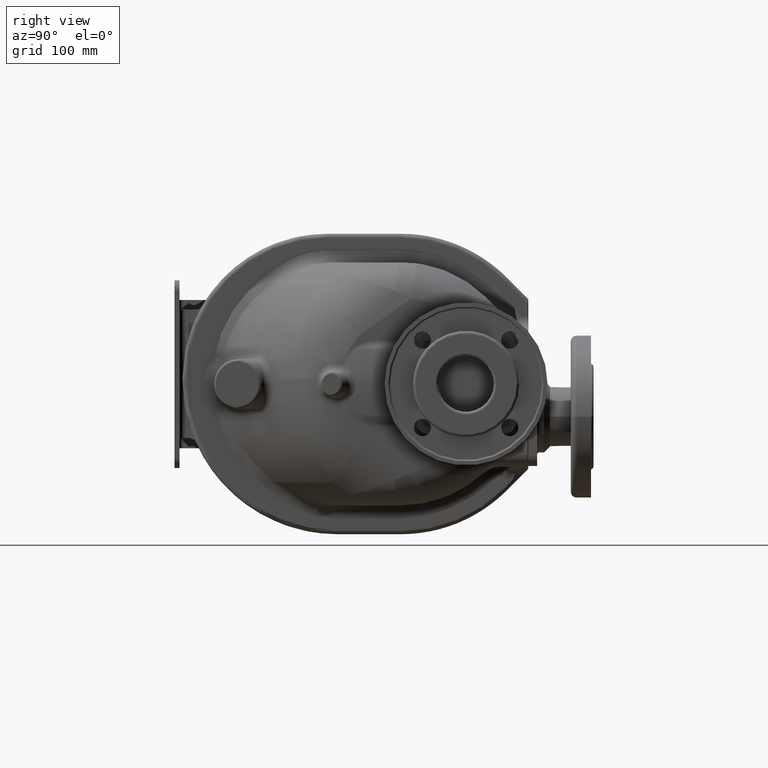
[diagram: clean part render]
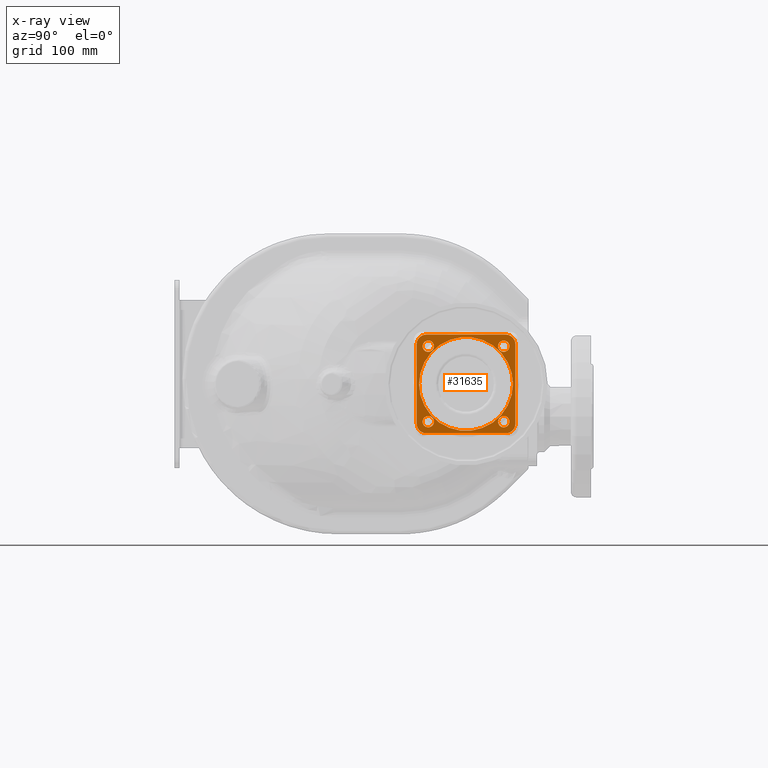
[diagram: x-ray — body ghosted, one internal face saturated and labeled with its STEP entity id]
A machine part, right view, then the same camera in x-ray: the body is ghosted and one INTERNAL B-rep face — a face not visible from any outside direction — is saturated and labeled: STEP entity #31635.
In plain terms, the highlighted planar face has unit normal (1, 0, 0).
Its self-contained STEP definition (entity closure, byte-faithful):
#5333=CARTESIAN_POINT('',(1.055E2,1.35E2,-1.E1));
#5334=DIRECTION('',(1.E0,0.E0,0.E0));
#5335=DIRECTION('',(0.E0,1.E0,0.E0));
#5336=AXIS2_PLACEMENT_3D('',#5333,#5334,#5335);
#5347=CARTESIAN_POINT('',(1.055E2,1.35E2,-1.E1));
#5348=DIRECTION('',(-1.E0,0.E0,0.E0));
#5349=DIRECTION('',(0.E0,1.E0,0.E0));
#5350=AXIS2_PLACEMENT_3D('',#5347,#5348,#5349);
#5356=DIRECTION('',(0.E0,-1.E0,0.E0));
#5357=VECTOR('',#5356,8.E1);
#5358=CARTESIAN_POINT('',(1.055E2,1.75E2,4.E1));
#5359=LINE('',#5358,#5357);
#5372=CARTESIAN_POINT('',(1.055E2,1.75E2,3.E1));
#5373=DIRECTION('',(-1.E0,0.E0,0.E0));
#5374=DIRECTION('',(0.E0,0.E0,1.E0));
#5375=AXIS2_PLACEMENT_3D('',#5372,#5373,#5374);
#5382=DIRECTION('',(0.E0,0.E0,1.E0));
#5383=VECTOR('',#5382,8.E1);
#5384=CARTESIAN_POINT('',(1.055E2,1.85E2,-5.E1));
#5385=LINE('',#5384,#5383);
#5398=CARTESIAN_POINT('',(1.055E2,1.75E2,-5.E1));
#5399=DIRECTION('',(-1.E0,0.E0,0.E0));
#5400=DIRECTION('',(0.E0,1.E0,0.E0));
#5401=AXIS2_PLACEMENT_3D('',#5398,#5399,#5400);
#5408=DIRECTION('',(0.E0,1.E0,0.E0));
#5409=VECTOR('',#5408,8.E1);
#5410=CARTESIAN_POINT('',(1.055E2,9.5E1,-6.E1));
#5411=LINE('',#5410,#5409);
#5424=CARTESIAN_POINT('',(1.055E2,9.5E1,-5.E1));
#5425=DIRECTION('',(-1.E0,0.E0,0.E0));
#5426=DIRECTION('',(0.E0,0.E0,-1.E0));
#5427=AXIS2_PLACEMENT_3D('',#5424,#5425,#5426);
#5434=DIRECTION('',(0.E0,0.E0,-1.E0));
#5435=VECTOR('',#5434,8.E1);
#5436=CARTESIAN_POINT('',(1.055E2,8.5E1,3.E1));
#5437=LINE('',#5436,#5435);
#5450=CARTESIAN_POINT('',(1.055E2,9.5E1,3.E1));
#5451=DIRECTION('',(-1.E0,0.E0,0.E0));
#5452=DIRECTION('',(0.E0,-1.E0,0.E0));
#5453=AXIS2_PLACEMENT_3D('',#5450,#5451,#5452);
#6140=CARTESIAN_POINT('',(1.055E2,9.681623381593E1,-4.818376618407E1));
#6141=DIRECTION('',(-1.E0,0.E0,0.E0));
#6142=DIRECTION('',(0.E0,0.E0,-1.E0));
#6143=AXIS2_PLACEMENT_3D('',#6140,#6141,#6142);
#6149=CARTESIAN_POINT('',(1.055E2,9.681623381593E1,-4.818376618407E1));
#6150=DIRECTION('',(-1.E0,0.E0,0.E0));
#6151=DIRECTION('',(0.E0,0.E0,1.E0));
#6152=AXIS2_PLACEMENT_3D('',#6149,#6150,#6151);
#6158=CARTESIAN_POINT('',(1.055E2,9.681623381593E1,2.818376618407E1));
#6159=DIRECTION('',(-1.E0,0.E0,0.E0));
#6160=DIRECTION('',(0.E0,-1.E0,0.E0));
#6161=AXIS2_PLACEMENT_3D('',#6158,#6159,#6160);
#6167=CARTESIAN_POINT('',(1.055E2,9.681623381593E1,2.818376618407E1));
#6168=DIRECTION('',(-1.E0,0.E0,0.E0));
#6169=DIRECTION('',(0.E0,1.E0,0.E0));
#6170=AXIS2_PLACEMENT_3D('',#6167,#6168,#6169);
#6176=CARTESIAN_POINT('',(1.055E2,1.731837661841E2,2.818376618407E1));
#6177=DIRECTION('',(-1.E0,0.E0,0.E0));
#6178=DIRECTION('',(0.E0,0.E0,1.E0));
#6179=AXIS2_PLACEMENT_3D('',#6176,#6177,#6178);
#6185=CARTESIAN_POINT('',(1.055E2,1.731837661841E2,2.818376618407E1));
#6186=DIRECTION('',(-1.E0,0.E0,0.E0));
#6187=DIRECTION('',(0.E0,0.E0,-1.E0));
#6188=AXIS2_PLACEMENT_3D('',#6185,#6186,#6187);
#6194=CARTESIAN_POINT('',(1.055E2,1.731837661841E2,-4.818376618407E1));
#6195=DIRECTION('',(-1.E0,0.E0,0.E0));
#6196=DIRECTION('',(0.E0,1.E0,0.E0));
#6197=AXIS2_PLACEMENT_3D('',#6194,#6195,#6196);
#6203=CARTESIAN_POINT('',(1.055E2,1.731837661841E2,-4.818376618407E1));
#6204=DIRECTION('',(-1.E0,0.E0,0.E0));
#6205=DIRECTION('',(0.E0,-1.E0,0.E0));
#6206=AXIS2_PLACEMENT_3D('',#6203,#6204,#6205);
#23671=CARTESIAN_POINT('',(1.055E2,1.825E2,-1.E1));
#23672=CARTESIAN_POINT('',(1.055E2,8.75E1,-1.E1));
#23673=VERTEX_POINT('',#23671);
#23674=VERTEX_POINT('',#23672);
#23679=CARTESIAN_POINT('',(1.055E2,9.681623381593E1,-5.393376618407E1));
#23680=CARTESIAN_POINT('',(1.055E2,9.681623381593E1,-4.243376618407E1));
#23681=VERTEX_POINT('',#23679);
#23682=VERTEX_POINT('',#23680);
#23683=CARTESIAN_POINT('',(1.055E2,9.106623381593E1,2.818376618407E1));
#23684=CARTESIAN_POINT('',(1.055E2,1.025662338159E2,2.818376618407E1));
#23685=VERTEX_POINT('',#23683);
#23686=VERTEX_POINT('',#23684);
#23687=CARTESIAN_POINT('',(1.055E2,1.731837661841E2,3.393376618407E1));
#23688=CARTESIAN_POINT('',(1.055E2,1.731837661841E2,2.243376618407E1));
#23689=VERTEX_POINT('',#23687);
#23690=VERTEX_POINT('',#23688);
#23691=CARTESIAN_POINT('',(1.055E2,1.789337661841E2,-4.818376618407E1));
#23692=CARTESIAN_POINT('',(1.055E2,1.674337661841E2,-4.818376618407E1));
#23693=VERTEX_POINT('',#23691);
#23694=VERTEX_POINT('',#23692);
#23711=CARTESIAN_POINT('',(1.055E2,1.75E2,4.E1));
#23712=CARTESIAN_POINT('',(1.055E2,9.5E1,4.E1));
#23713=VERTEX_POINT('',#23711);
#23714=VERTEX_POINT('',#23712);
#23715=CARTESIAN_POINT('',(1.055E2,8.5E1,3.E1));
#23716=CARTESIAN_POINT('',(1.055E2,8.5E1,-5.E1));
#23717=VERTEX_POINT('',#23715);
#23718=VERTEX_POINT('',#23716);
#23719=CARTESIAN_POINT('',(1.055E2,9.5E1,-6.E1));
#23720=CARTESIAN_POINT('',(1.055E2,1.75E2,-6.E1));
#23721=VERTEX_POINT('',#23719);
#23722=VERTEX_POINT('',#23720);
#23723=CARTESIAN_POINT('',(1.055E2,1.85E2,-5.E1));
#23724=CARTESIAN_POINT('',(1.055E2,1.85E2,3.E1));
#23725=VERTEX_POINT('',#23723);
#23726=VERTEX_POINT('',#23724);
#31584=CARTESIAN_POINT('',(1.055E2,1.35E2,-1.E1));
#31585=DIRECTION('',(1.E0,0.E0,0.E0));
#31586=DIRECTION('',(0.E0,1.E0,0.E0));
#31587=AXIS2_PLACEMENT_3D('',#31584,#31585,#31586);
#31588=PLANE('',#31587);
#31590=ORIENTED_EDGE('',*,*,#31589,.T.);
#31592=ORIENTED_EDGE('',*,*,#31591,.F.);
#31594=ORIENTED_EDGE('',*,*,#31593,.T.);
#31596=ORIENTED_EDGE('',*,*,#31595,.F.);
#31598=ORIENTED_EDGE('',*,*,#31597,.T.);
#31600=ORIENTED_EDGE('',*,*,#31599,.F.);
#31602=ORIENTED_EDGE('',*,*,#31601,.T.);
#31604=ORIENTED_EDGE('',*,*,#31603,.F.);
#31605=EDGE_LOOP('',(#31590,#31592,#31594,#31596,#31598,#31600,#31602,#31604));
#31606=FACE_OUTER_BOUND('',#31605,.F.);
#31607=ORIENTED_EDGE('',*,*,#31571,.T.);
#31608=ORIENTED_EDGE('',*,*,#31550,.F.);
#31609=EDGE_LOOP('',(#31607,#31608));
#31610=FACE_BOUND('',#31609,.F.);
#31612=ORIENTED_EDGE('',*,*,#31611,.T.);
#31614=ORIENTED_EDGE('',*,*,#31613,.T.);
#31615=EDGE_LOOP('',(#31612,#31614));
#31616=FACE_BOUND('',#31615,.F.);
#31618=ORIENTED_EDGE('',*,*,#31617,.T.);
#31620=ORIENTED_EDGE('',*,*,#31619,.T.);
#31621=EDGE_LOOP('',(#31618,#31620));
#31622=FACE_BOUND('',#31621,.F.);
#31624=ORIENTED_EDGE('',*,*,#31623,.T.);
#31626=ORIENTED_EDGE('',*,*,#31625,.T.);
#31627=EDGE_LOOP('',(#31624,#31626));
#31628=FACE_BOUND('',#31627,.F.);
#31630=ORIENTED_EDGE('',*,*,#31629,.T.);
#31632=ORIENTED_EDGE('',*,*,#31631,.T.);
#31633=EDGE_LOOP('',(#31630,#31632));
#31634=FACE_BOUND('',#31633,.F.);
#5337=CIRCLE('',#5336,4.75E1);
#5351=CIRCLE('',#5350,4.75E1);
#5376=CIRCLE('',#5375,1.E1);
#5402=CIRCLE('',#5401,1.E1);
#5428=CIRCLE('',#5427,1.E1);
#5454=CIRCLE('',#5453,1.E1);
#6144=CIRCLE('',#6143,5.75E0);
#6153=CIRCLE('',#6152,5.75E0);
#6162=CIRCLE('',#6161,5.75E0);
#6171=CIRCLE('',#6170,5.75E0);
#6180=CIRCLE('',#6179,5.75E0);
#6189=CIRCLE('',#6188,5.75E0);
#6198=CIRCLE('',#6197,5.75E0);
#6207=CIRCLE('',#6206,5.75E0);
#31550=EDGE_CURVE('',#23673,#23674,#5337,.T.);
#31571=EDGE_CURVE('',#23673,#23674,#5351,.T.);
#31589=EDGE_CURVE('',#23713,#23714,#5359,.T.);
#31591=EDGE_CURVE('',#23717,#23714,#5454,.T.);
#31593=EDGE_CURVE('',#23717,#23718,#5437,.T.);
#31595=EDGE_CURVE('',#23721,#23718,#5428,.T.);
#31597=EDGE_CURVE('',#23721,#23722,#5411,.T.);
#31599=EDGE_CURVE('',#23725,#23722,#5402,.T.);
#31601=EDGE_CURVE('',#23725,#23726,#5385,.T.);
#31603=EDGE_CURVE('',#23713,#23726,#5376,.T.);
#31611=EDGE_CURVE('',#23681,#23682,#6144,.T.);
#31613=EDGE_CURVE('',#23682,#23681,#6153,.T.);
#31617=EDGE_CURVE('',#23685,#23686,#6162,.T.);
#31619=EDGE_CURVE('',#23686,#23685,#6171,.T.);
#31623=EDGE_CURVE('',#23689,#23690,#6180,.T.);
#31625=EDGE_CURVE('',#23690,#23689,#6189,.T.);
#31629=EDGE_CURVE('',#23693,#23694,#6198,.T.);
#31631=EDGE_CURVE('',#23694,#23693,#6207,.T.);
#31635=ADVANCED_FACE('',(#31606,#31610,#31616,#31622,#31628,#31634),#31588,.F.);